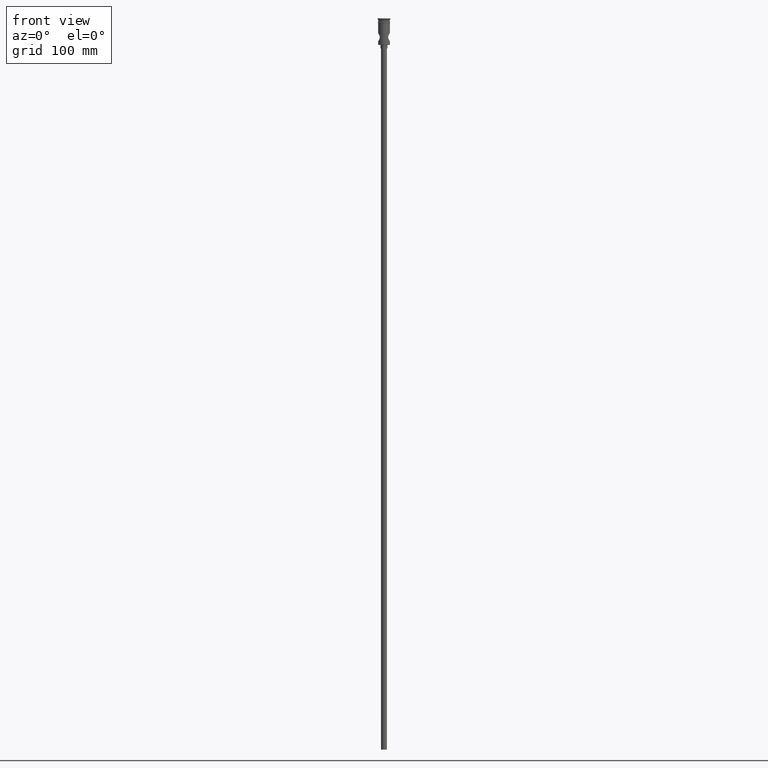
[diagram: clean part render]
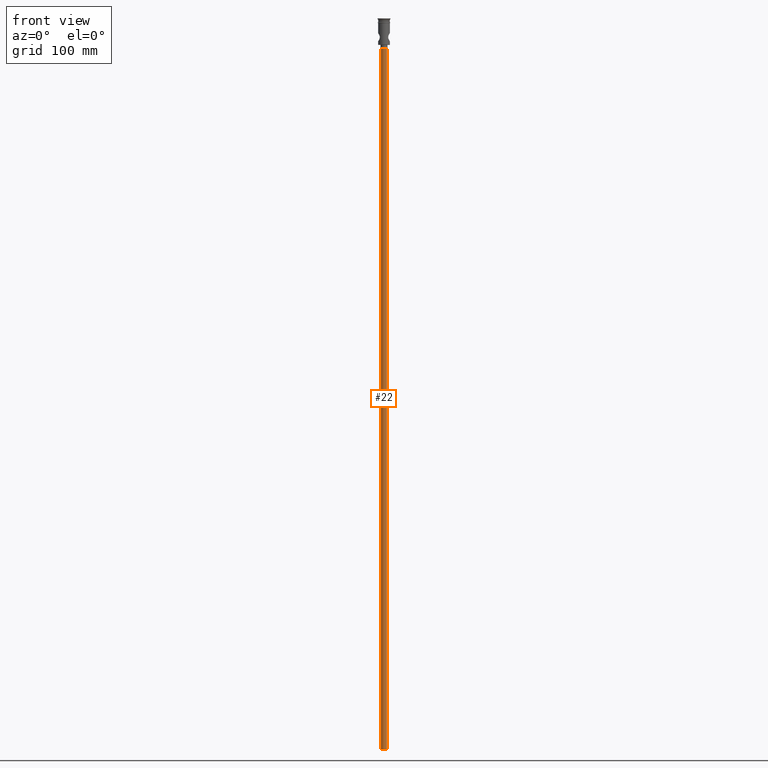
[diagram: same view with one face highlighted and labeled with its STEP entity id]
A machine part, front view. The second image highlights one B-rep face of the part: STEP entity #22.
In plain terms, the highlighted cylindrical surface (edge-blend (fillet) strip) has radius 2.5 mm, axis along (-0, -0, 1).
Its self-contained STEP definition (entity closure, byte-faithful):
#22 = ADVANCED_FACE ( 'NONE', ( #157 ), #56, .T. ) ;
#40 = CARTESIAN_POINT ( 'NONE',  ( 2.500000000000000000, 0.000000000000000000, -622.4999999999998863 ) ) ;
#47 = DIRECTION ( 'NONE',  ( -1.000000000000000000, 0.000000000000000000, 0.000000000000000000 ) ) ;
#56 = CYLINDRICAL_SURFACE ( 'NONE', #974, 2.500000000000000000 ) ;
#69 = VERTEX_POINT ( 'NONE', #497 ) ;
#71 = EDGE_CURVE ( 'NONE', #916, #641, #190, .T. ) ;
#99 = CARTESIAN_POINT ( 'NONE',  ( 2.500000000000000000, 0.000000000000000000, -622.4999999999998863 ) ) ;
#116 = DIRECTION ( 'NONE',  ( -0.000000000000000000, -0.000000000000000000, 1.000000000000000000 ) ) ;
#157 = FACE_OUTER_BOUND ( 'NONE', #371, .T. ) ;
#180 = VERTEX_POINT ( 'NONE', #99 ) ;
#190 = CIRCLE ( 'NONE', #1153, 2.500000000000000000 ) ;
#239 = EDGE_CURVE ( 'NONE', #180, #69, #830, .T. ) ;
#255 = ORIENTED_EDGE ( 'NONE', *, *, #1358, .F. ) ;
#358 = DIRECTION ( 'NONE',  ( -0.000000000000000000, -0.000000000000000000, 1.000000000000000000 ) ) ;
#371 = EDGE_LOOP ( 'NONE', ( #255, #372, #1336, #919 ) ) ;
#372 = ORIENTED_EDGE ( 'NONE', *, *, #239, .F. ) ;
#392 = DIRECTION ( 'NONE',  ( 0.000000000000000000, 0.000000000000000000, -1.000000000000000000 ) ) ;
#446 = CARTESIAN_POINT ( 'NONE',  ( -2.500000000000000000, 3.061616997868383141E-16, -25.50000000000000000 ) ) ;
#497 = CARTESIAN_POINT ( 'NONE',  ( -2.500000000000000000, 3.061616997868383141E-16, -622.4999999999998863 ) ) ;
#637 = CARTESIAN_POINT ( 'NONE',  ( -2.500000000000000000, 3.061616997868383141E-16, -622.4999999999998863 ) ) ;
#641 = VERTEX_POINT ( 'NONE', #446 ) ;
#681 = AXIS2_PLACEMENT_3D ( 'NONE', #1237, #392, #1100 ) ;
#699 = VECTOR ( 'NONE', #116, 1000.000000000000000 ) ;
#737 = DIRECTION ( 'NONE',  ( 1.000000000000000000, 0.000000000000000000, 0.000000000000000000 ) ) ;
#784 = LINE ( 'NONE', #637, #699 ) ;
#819 = LINE ( 'NONE', #40, #959 ) ;
#830 = CIRCLE ( 'NONE', #681, 2.500000000000000000 ) ;
#916 = VERTEX_POINT ( 'NONE', #1243 ) ;
#919 = ORIENTED_EDGE ( 'NONE', *, *, #71, .T. ) ;
#959 = VECTOR ( 'NONE', #358, 1000.000000000000000 ) ;
#965 = CARTESIAN_POINT ( 'NONE',  ( 0.000000000000000000, 0.000000000000000000, -25.50000000000000000 ) ) ;
#974 = AXIS2_PLACEMENT_3D ( 'NONE', #1091, #1074, #737 ) ;
#983 = DIRECTION ( 'NONE',  ( 0.000000000000000000, 0.000000000000000000, -1.000000000000000000 ) ) ;
#1074 = DIRECTION ( 'NONE',  ( -0.000000000000000000, -0.000000000000000000, 1.000000000000000000 ) ) ;
#1075 = EDGE_CURVE ( 'NONE', #180, #916, #819, .T. ) ;
#1091 = CARTESIAN_POINT ( 'NONE',  ( 0.000000000000000000, 0.000000000000000000, -622.4999999999998863 ) ) ;
#1100 = DIRECTION ( 'NONE',  ( -1.000000000000000000, 0.000000000000000000, 0.000000000000000000 ) ) ;
#1153 = AXIS2_PLACEMENT_3D ( 'NONE', #965, #983, #47 ) ;
#1237 = CARTESIAN_POINT ( 'NONE',  ( 0.000000000000000000, 0.000000000000000000, -622.4999999999998863 ) ) ;
#1243 = CARTESIAN_POINT ( 'NONE',  ( 2.500000000000000000, 0.000000000000000000, -25.50000000000000000 ) ) ;
#1336 = ORIENTED_EDGE ( 'NONE', *, *, #1075, .T. ) ;
#1358 = EDGE_CURVE ( 'NONE', #69, #641, #784, .T. ) ;